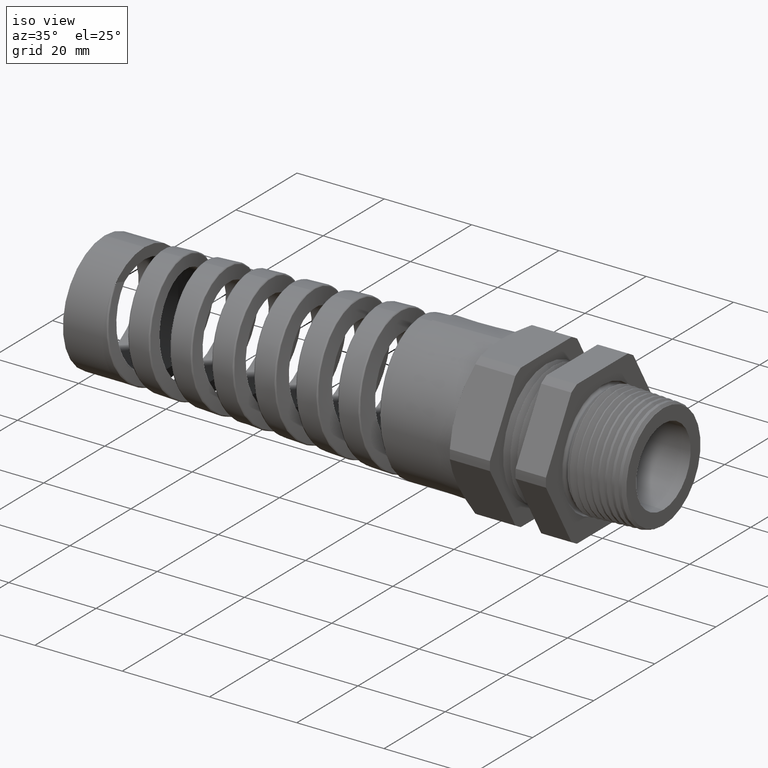
[diagram: clean part render]
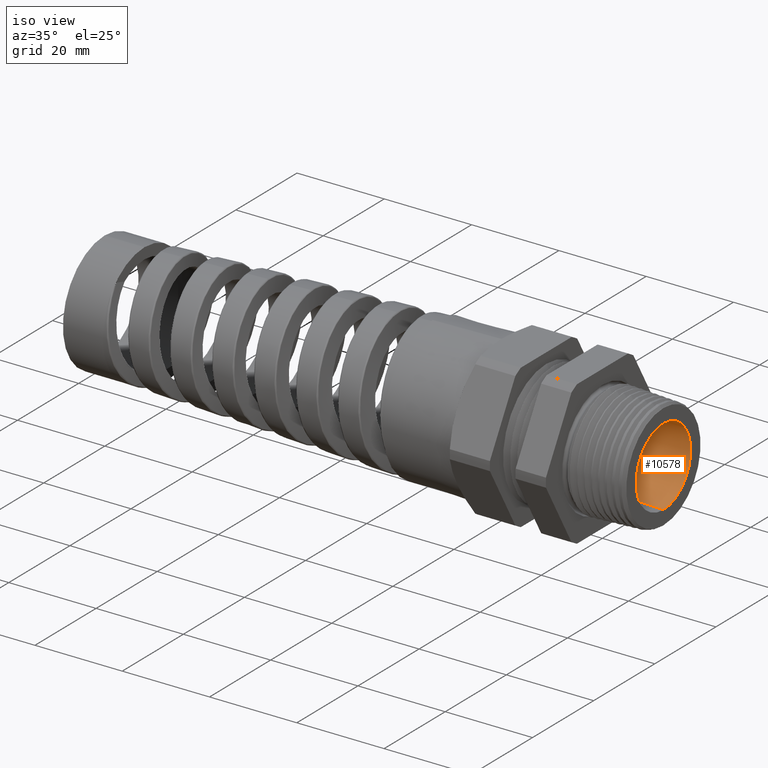
[diagram: same view with one face highlighted and labeled with its STEP entity id]
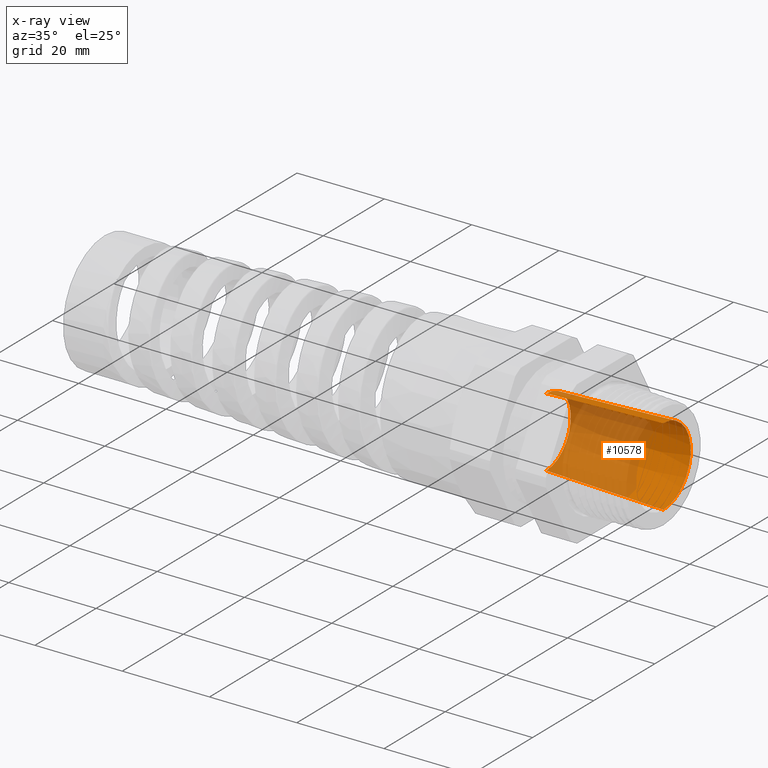
[diagram: x-ray of the same camera — body ghosted, the highlighted face saturated]
A machine part, iso view. The second image highlights one B-rep face of the part: STEP entity #10578.
The next image is the same camera in x-ray: the body ghosted, the highlighted face saturated — about 60% of this face is hidden behind the body in this view.
In plain terms, the highlighted conical surface has half-angle 2 deg.
Its self-contained STEP definition (entity closure, byte-faithful):
#1385 = VERTEX_POINT ( 'NONE', #4428 ) ;
#1386 = VERTEX_POINT ( 'NONE', #4427 ) ;
#1388 = EDGE_CURVE ( 'NONE', #1386, #1389, #4426, .T. ) ;
#1389 = VERTEX_POINT ( 'NONE', #4491 ) ;
#1392 = VERTEX_POINT ( 'NONE', #4485 ) ;
#1394 = EDGE_CURVE ( 'NONE', #1385, #1392, #4484, .T. ) ;
#4424 = VECTOR ( 'NONE', #4492, 39.37007874015748900 ) ;
#4425 = CARTESIAN_POINT ( 'NONE',  ( -0.5058333333333334700, 3.857637417314162700E-017, 0.3150000000000000000 ) ) ;
#4426 = LINE ( 'NONE', #4425, #4424 ) ;
#4427 = CARTESIAN_POINT ( 'NONE',  ( -0.5058333333333334700, 0.0000000000000000000, 0.3150000000000000000 ) ) ;
#4428 = CARTESIAN_POINT ( 'NONE',  ( -0.5058333333333334700, 3.857637417314162700E-017, -0.3150000000000000000 ) ) ;
#4481 = DIRECTION ( 'NONE',  ( 0.9993908270190957600, 0.0000000000000000000, -0.03489949670250171200 ) ) ;
#4482 = VECTOR ( 'NONE', #4481, 39.37007874015748900 ) ;
#4483 = CARTESIAN_POINT ( 'NONE',  ( -0.5058333333333334700, 0.0000000000000000000, -0.3150000000000000000 ) ) ;
#4484 = LINE ( 'NONE', #4483, #4482 ) ;
#4485 = CARTESIAN_POINT ( 'NONE',  ( 0.5500000000000001600, 0.0000000000000000000, -0.3518705124550377500 ) ) ;
#4491 = CARTESIAN_POINT ( 'NONE',  ( 0.5500000000000001600, 4.309170967924009200E-017, 0.3518705124550377500 ) ) ;
#4492 = DIRECTION ( 'NONE',  ( 0.9993908270190957600, 4.273955692857232700E-018, 0.03489949670250171200 ) ) ;
#6339 = DIRECTION ( 'NONE',  ( 0.0000000000000000000, 0.0000000000000000000, 1.000000000000000000 ) ) ;
#6340 = DIRECTION ( 'NONE',  ( -1.000000000000000000, 0.0000000000000000000, 0.0000000000000000000 ) ) ;
#6341 = CARTESIAN_POINT ( 'NONE',  ( 0.5500000000000001600, 0.0000000000000000000, 0.0000000000000000000 ) ) ;
#6342 = AXIS2_PLACEMENT_3D ( 'NONE', #6341, #6340, #6339 ) ;
#6343 = CIRCLE ( 'NONE', #6342, 0.3518705124550377500 ) ;
#10298 = ORIENTED_EDGE ( 'NONE', *, *, #1394, .T. ) ;
#10299 = ORIENTED_EDGE ( 'NONE', *, *, #10303, .F. ) ;
#10302 = ORIENTED_EDGE ( 'NONE', *, *, #10604, .T. ) ;
#10303 = EDGE_CURVE ( 'NONE', #1389, #1392, #6343, .T. ) ;
#10578 = ADVANCED_FACE ( 'NONE', ( #11493 ), #11492, .F. ) ;
#10586 = ORIENTED_EDGE ( 'NONE', *, *, #1388, .F. ) ;
#10602 = EDGE_LOOP ( 'NONE', ( #10586, #10302, #10298, #10299 ) ) ;
#10604 = EDGE_CURVE ( 'NONE', #1386, #1385, #11528, .T. ) ;
#11488 = DIRECTION ( 'NONE',  ( 0.0000000000000000000, 0.0000000000000000000, -1.000000000000000000 ) ) ;
#11489 = DIRECTION ( 'NONE',  ( 1.000000000000000000, 0.0000000000000000000, 0.0000000000000000000 ) ) ;
#11490 = CARTESIAN_POINT ( 'NONE',  ( -0.5058333333333334700, 0.0000000000000000000, 0.0000000000000000000 ) ) ;
#11491 = AXIS2_PLACEMENT_3D ( 'NONE', #11490, #11489, #11488 ) ;
#11492 = CONICAL_SURFACE ( 'NONE', #11491, 0.3150000000000000000, 0.03490658503988733300 ) ;
#11493 = FACE_OUTER_BOUND ( 'NONE', #10602, .T. ) ;
#11524 = DIRECTION ( 'NONE',  ( 0.0000000000000000000, 0.0000000000000000000, 1.000000000000000000 ) ) ;
#11525 = DIRECTION ( 'NONE',  ( -1.000000000000000000, 0.0000000000000000000, 0.0000000000000000000 ) ) ;
#11526 = CARTESIAN_POINT ( 'NONE',  ( -0.5058333333333334700, 0.0000000000000000000, 0.0000000000000000000 ) ) ;
#11527 = AXIS2_PLACEMENT_3D ( 'NONE', #11526, #11525, #11524 ) ;
#11528 = CIRCLE ( 'NONE', #11527, 0.3150000000000000000 ) ;